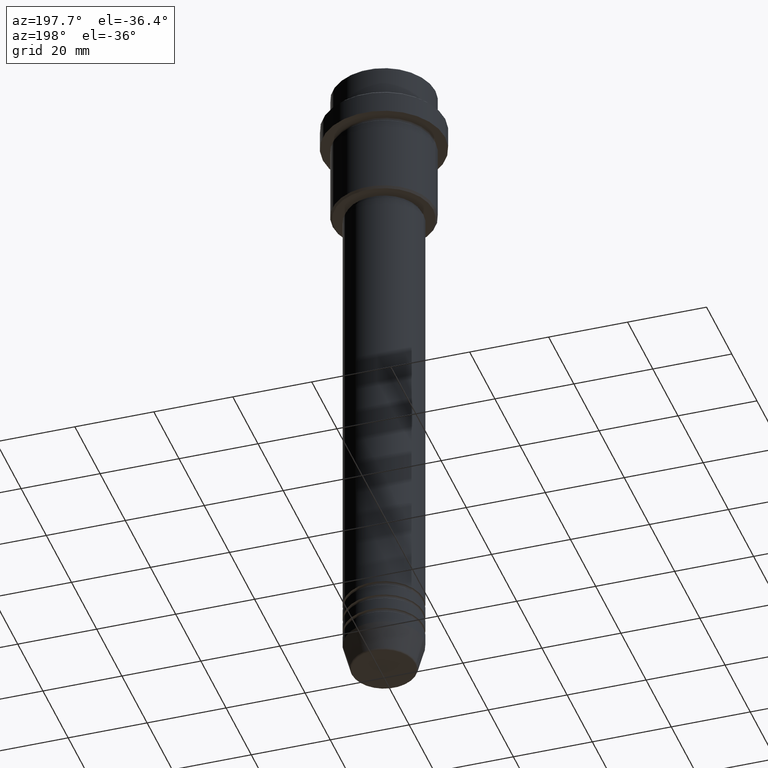
[diagram: clean part render]
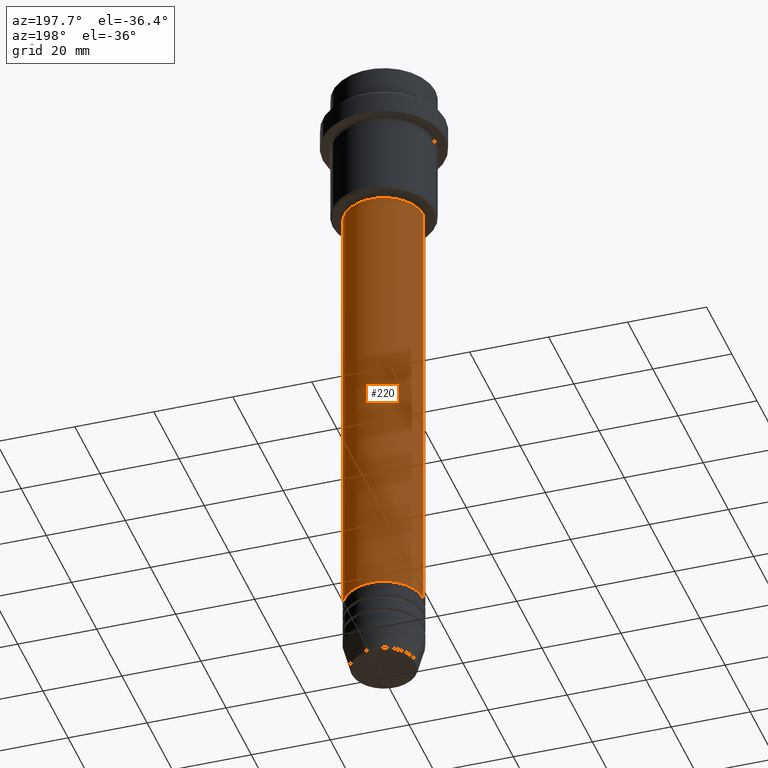
[diagram: same view with one face highlighted and labeled with its STEP entity id]
A machine part, auxiliary view. The second image highlights one B-rep face of the part: STEP entity #220.
In plain terms, the highlighted cylindrical surface (partial cylindrical patch) has radius 10 mm, axis along (-0, -0, 1).
Its self-contained STEP definition (entity closure, byte-faithful):
#11 = EDGE_LOOP ( 'NONE', ( #146, #795, #577, #435 ) ) ;
#56 = CARTESIAN_POINT ( 'NONE',  ( -10.00000000000000178, 1.224646799147353454E-15, 0.000000000000000000 ) ) ;
#112 = DIRECTION ( 'NONE',  ( -0.000000000000000000, -0.000000000000000000, 1.000000000000000000 ) ) ;
#118 = CARTESIAN_POINT ( 'NONE',  ( 0.000000000000000000, 0.000000000000000000, -37.00000000000000000 ) ) ;
#146 = ORIENTED_EDGE ( 'NONE', *, *, #490, .T. ) ;
#155 = CIRCLE ( 'NONE', #1391, 10.00000000000000000 ) ;
#158 = CIRCLE ( 'NONE', #1372, 10.00000000000000178 ) ;
#214 = EDGE_CURVE ( 'NONE', #315, #824, #635, .T. ) ;
#220 = ADVANCED_FACE ( 'NONE', ( #1180 ), #1087, .T. ) ;
#297 = VERTEX_POINT ( 'NONE', #1241 ) ;
#315 = VERTEX_POINT ( 'NONE', #355 ) ;
#345 = VECTOR ( 'NONE', #908, 1000.000000000000000 ) ;
#355 = CARTESIAN_POINT ( 'NONE',  ( 10.00000000000000000, 0.000000000000000000, -151.9999999999998863 ) ) ;
#429 = DIRECTION ( 'NONE',  ( -0.000000000000000000, -0.000000000000000000, 1.000000000000000000 ) ) ;
#435 = ORIENTED_EDGE ( 'NONE', *, *, #214, .F. ) ;
#490 = EDGE_CURVE ( 'NONE', #315, #297, #155, .T. ) ;
#504 = AXIS2_PLACEMENT_3D ( 'NONE', #1295, #429, #1186 ) ;
#536 = EDGE_CURVE ( 'NONE', #297, #1031, #1246, .T. ) ;
#577 = ORIENTED_EDGE ( 'NONE', *, *, #843, .F. ) ;
#617 = DIRECTION ( 'NONE',  ( 1.000000000000000000, 0.000000000000000000, 0.000000000000000000 ) ) ;
#635 = LINE ( 'NONE', #876, #904 ) ;
#709 = DIRECTION ( 'NONE',  ( -0.000000000000000000, -0.000000000000000000, 1.000000000000000000 ) ) ;
#795 = ORIENTED_EDGE ( 'NONE', *, *, #536, .T. ) ;
#824 = VERTEX_POINT ( 'NONE', #888 ) ;
#843 = EDGE_CURVE ( 'NONE', #824, #1031, #158, .T. ) ;
#876 = CARTESIAN_POINT ( 'NONE',  ( 10.00000000000000178, 0.000000000000000000, 0.000000000000000000 ) ) ;
#888 = CARTESIAN_POINT ( 'NONE',  ( 10.00000000000000178, 0.000000000000000000, -37.00000000000000000 ) ) ;
#904 = VECTOR ( 'NONE', #1095, 1000.000000000000000 ) ;
#908 = DIRECTION ( 'NONE',  ( -0.000000000000000000, -0.000000000000000000, 1.000000000000000000 ) ) ;
#1031 = VERTEX_POINT ( 'NONE', #1415 ) ;
#1087 = CYLINDRICAL_SURFACE ( 'NONE', #504, 10.00000000000000178 ) ;
#1095 = DIRECTION ( 'NONE',  ( -0.000000000000000000, -0.000000000000000000, 1.000000000000000000 ) ) ;
#1180 = FACE_OUTER_BOUND ( 'NONE', #11, .T. ) ;
#1186 = DIRECTION ( 'NONE',  ( 1.000000000000000000, 0.000000000000000000, 0.000000000000000000 ) ) ;
#1238 = DIRECTION ( 'NONE',  ( 1.000000000000000000, 0.000000000000000000, 0.000000000000000000 ) ) ;
#1241 = CARTESIAN_POINT ( 'NONE',  ( -10.00000000000000000, 1.224646799147353256E-15, -151.9999999999998863 ) ) ;
#1246 = LINE ( 'NONE', #56, #345 ) ;
#1263 = CARTESIAN_POINT ( 'NONE',  ( 0.000000000000000000, 0.000000000000000000, -151.9999999999998863 ) ) ;
#1295 = CARTESIAN_POINT ( 'NONE',  ( 0.000000000000000000, 0.000000000000000000, 0.000000000000000000 ) ) ;
#1372 = AXIS2_PLACEMENT_3D ( 'NONE', #118, #112, #1238 ) ;
#1391 = AXIS2_PLACEMENT_3D ( 'NONE', #1263, #709, #617 ) ;
#1415 = CARTESIAN_POINT ( 'NONE',  ( -10.00000000000000178, 1.224646799147353454E-15, -37.00000000000000000 ) ) ;